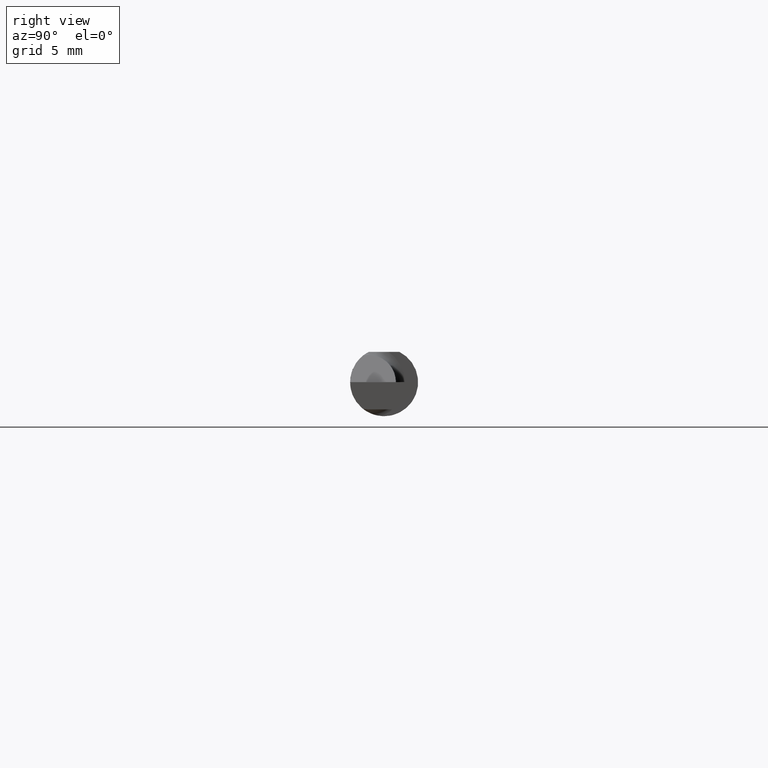
[diagram: clean part render]
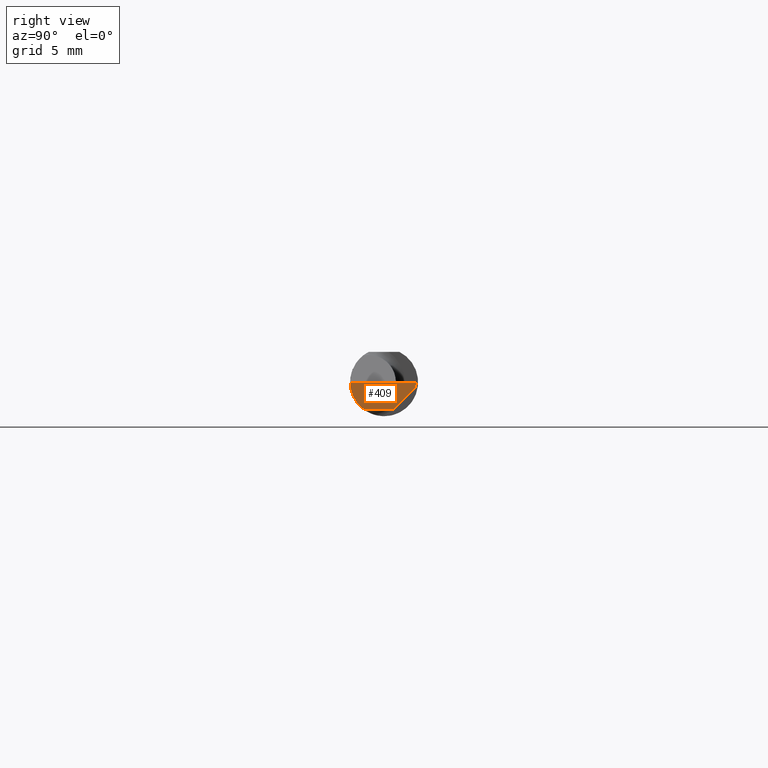
[diagram: same view with one face highlighted and labeled with its STEP entity id]
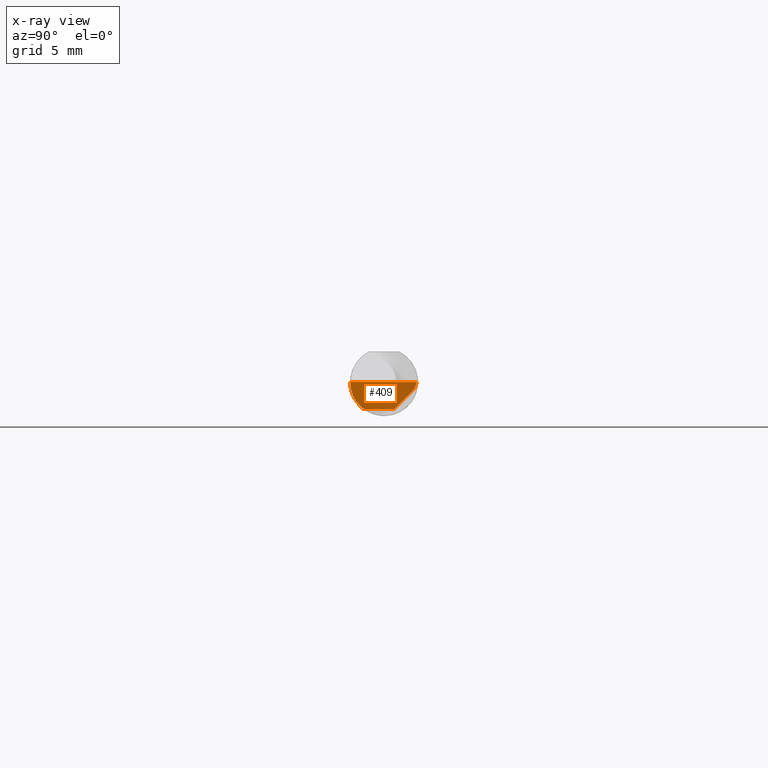
[diagram: x-ray of the same camera — body ghosted, the highlighted face saturated]
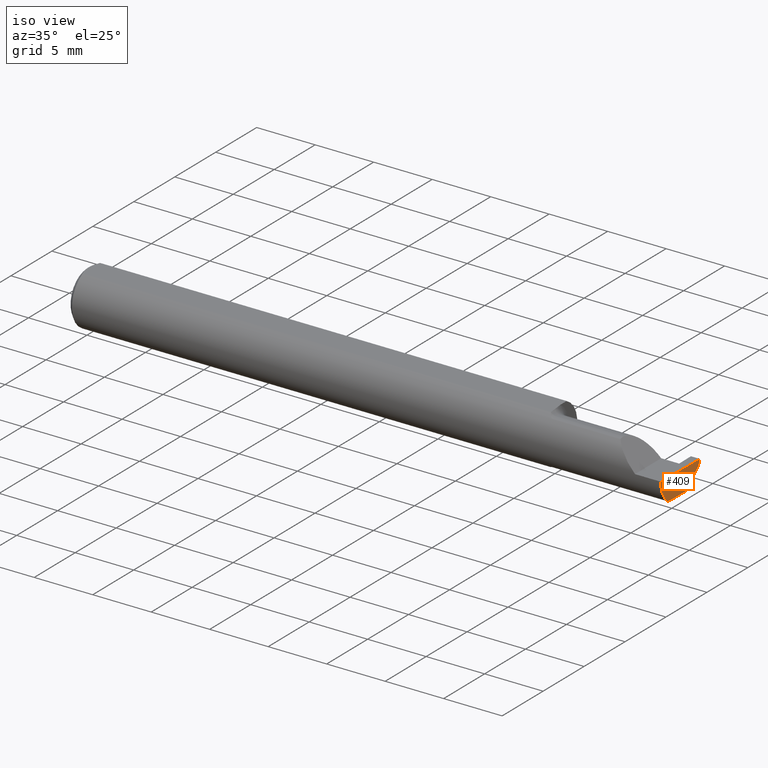
[diagram: same view with one face highlighted and labeled with its STEP entity id]
A machine part, right view. The second image highlights one B-rep face of the part: STEP entity #409.
The next image is the same camera in x-ray: the body ghosted, the highlighted face saturated — about 0% of this face is hidden behind the body in this view.
A second angle (iso view) of the same face is appended — the face is thin or edge-on in the first view.
In plain terms, the highlighted planar face has unit normal (-0.9995, 0.0174, 0.0262).
Its self-contained STEP definition (entity closure, byte-faithful):
#13 = DIRECTION ( 'NONE',  ( 0.02618093032612054533, 0.000000000000000000, 0.9996572206948034500 ) ) ;
#20 =( BOUNDED_CURVE ( )  B_SPLINE_CURVE ( 3, ( #225, #472, #645, #701 ),
 .UNSPECIFIED., .F., .T. ) 
 B_SPLINE_CURVE_WITH_KNOTS ( ( 4, 4 ),
 ( 0.3794527164476041992, 0.5877155292608622350 ),
 .UNSPECIFIED. ) 
 CURVE ( )  GEOMETRIC_REPRESENTATION_ITEM ( )  RATIONAL_B_SPLINE_CURVE ( ( 1.000000000000000000, 0.9963888149483995926, 0.9963888149483995926, 1.000000000000000000 ) ) 
 REPRESENTATION_ITEM ( '' )  );
#52 = LINE ( 'NONE', #228, #63 ) ;
#53 = DIRECTION ( 'NONE',  ( -0.01744642479411312799, -0.9998477995484629233, 3.463134274570152404E-16 ) ) ;
#63 = VECTOR ( 'NONE', #658, 39.37007874015748854 ) ;
#66 = CARTESIAN_POINT ( 'NONE',  ( 1.999381723781206599, 0.08348456554894213844, -0.01900000000000000300 ) ) ;
#71 = ORIENTED_EDGE ( 'NONE', *, *, #260, .F. ) ;
#83 = DIRECTION ( 'NONE',  ( -0.03084274406794414863, -0.7067703747110382073, -0.7067703747110356538 ) ) ;
#88 = CARTESIAN_POINT ( 'NONE',  ( 2.000000000000000444, 0.09040000000000000813, -4.722041942173579765E-17 ) ) ;
#97 = CARTESIAN_POINT ( 'NONE',  ( 1.996789369178486595, -0.09359999999634724399, 1.727064904157919157E-17 ) ) ;
#99 = VECTOR ( 'NONE', #172, 39.37007874015748854 ) ;
#100 = VERTEX_POINT ( 'NONE', #88 ) ;
#106 = CARTESIAN_POINT ( 'NONE',  ( 1.996678706298551820, -0.09994204647866641866, 4.067411700506801675E-19 ) ) ;
#116 = LINE ( 'NONE', #219, #99 ) ;
#121 = EDGE_CURVE ( 'NONE', #466, #265, #20, .T. ) ;
#128 = VERTEX_POINT ( 'NONE', #97 ) ;
#136 = EDGE_CURVE ( 'NONE', #128, #100, #713, .T. ) ;
#147 = CARTESIAN_POINT ( 'NONE',  ( 1.999287184445666998, 0.08131816941191072345, -0.02116639613703141104 ) ) ;
#156 = DIRECTION ( 'NONE',  ( 0.01744642479411313840, 0.9998477995484629233, -2.135106780035502721E-18 ) ) ;
#172 = DIRECTION ( 'NONE',  ( -0.03056411404777942264, -0.3418603543644915255, -0.9392536042231929283 ) ) ;
#182 = CARTESIAN_POINT ( 'NONE',  ( 1.995715029210241465, -0.04259999999999997816, -0.07499999999999998335 ) ) ;
#184 = VECTOR ( 'NONE', #83, 39.37007874015748854 ) ;
#219 = CARTESIAN_POINT ( 'NONE',  ( 1.999906583493247902, 0.08935513411407894346, -0.002870745427926570548 ) ) ;
#225 = CARTESIAN_POINT ( 'NONE',  ( 1.995486889784650497, -0.05810704225352112534, -0.07337936794867826185 ) ) ;
#228 = CARTESIAN_POINT ( 'NONE',  ( 1.994172072281005459, -0.09355431490906530867, -0.09996576130738767108 ) ) ;
#234 = VERTEX_POINT ( 'NONE', #358 ) ;
#250 = CARTESIAN_POINT ( 'NONE',  ( 1.997436282896842386, 0.05604437736224970185, -0.07500000000000002498 ) ) ;
#256 = VERTEX_POINT ( 'NONE', #66 ) ;
#260 = EDGE_CURVE ( 'NONE', #491, #265, #481, .T. ) ;
#265 = VERTEX_POINT ( 'NONE', #182 ) ;
#282 = VECTOR ( 'NONE', #53, 39.37007874015748854 ) ;
#294 = CARTESIAN_POINT ( 'NONE',  ( 1.995486889784650497, -0.05810704225352112534, -0.07337936794867826185 ) ) ;
#330 = EDGE_CURVE ( 'NONE', #466, #234, #570, .T. ) ;
#331 = ORIENTED_EDGE ( 'NONE', *, *, #578, .F. ) ;
#358 = CARTESIAN_POINT ( 'NONE',  ( 1.996788249052547481, -0.09359999022555406945, -4.277588313357508156E-05 ) ) ;
#363 = EDGE_LOOP ( 'NONE', ( #584, #71, #673, #729, #478, #331, #526 ) ) ;
#375 = EDGE_CURVE ( 'NONE', #256, #491, #752, .T. ) ;
#402 = CARTESIAN_POINT ( 'NONE',  ( 1.997382703856816377, 0.09044568507411565594, -0.09996573249755573431 ) ) ;
#409 = ADVANCED_FACE ( 'NONE', ( #464 ), #516, .F. ) ;
#410 = CARTESIAN_POINT ( 'NONE',  ( 1.996937940439960757, 0.02748456554894194992, -0.07499999999999998335 ) ) ;
#460 = DIRECTION ( 'NONE',  ( -0.9995051766793262571, 0.01744044634007060196, 0.02617694830739122208 ) ) ;
#464 = FACE_OUTER_BOUND ( 'NONE', #363, .T. ) ;
#466 = VERTEX_POINT ( 'NONE', #483 ) ;
#471 = AXIS2_PLACEMENT_3D ( 'NONE', #402, #460, #13 ) ;
#472 = CARTESIAN_POINT ( 'NONE',  ( 1.995547692684114249, -0.05300374992736063551, -0.07445783144524571739 ) ) ;
#477 = VECTOR ( 'NONE', #156, 39.37007874015748854 ) ;
#478 = ORIENTED_EDGE ( 'NONE', *, *, #136, .F. ) ;
#481 = LINE ( 'NONE', #250, #282 ) ;
#483 = CARTESIAN_POINT ( 'NONE',  ( 1.995486889784650497, -0.05810704225352112534, -0.07337936794867826185 ) ) ;
#484 = CARTESIAN_POINT ( 'NONE',  ( 1.995561922431088098, -0.08091355869144019330, -0.05531953381055033925 ) ) ;
#491 = VERTEX_POINT ( 'NONE', #410 ) ;
#516 = PLANE ( 'NONE',  #471 ) ;
#526 = ORIENTED_EDGE ( 'NONE', *, *, #330, .F. ) ;
#537 = CARTESIAN_POINT ( 'NONE',  ( 1.996026586675631709, -0.09358669535931163352, -0.02913391928411206838 ) ) ;
#558 = EDGE_CURVE ( 'NONE', #100, #256, #116, .T. ) ;
#570 =( BOUNDED_CURVE ( )  B_SPLINE_CURVE ( 3, ( #294, #484, #537, #725 ),
 .UNSPECIFIED., .F., .T. ) 
 B_SPLINE_CURVE_WITH_KNOTS ( ( 4, 4 ),
 ( 0.08204942185700578317, 0.9826237902196912621 ),
 .UNSPECIFIED. ) 
 CURVE ( )  GEOMETRIC_REPRESENTATION_ITEM ( )  RATIONAL_B_SPLINE_CURVE ( ( 1.000000000000000000, 0.9335481000009943076, 0.9335481000009943076, 1.000000000000000000 ) ) 
 REPRESENTATION_ITEM ( '' )  );
#578 = EDGE_CURVE ( 'NONE', #234, #128, #52, .T. ) ;
#584 = ORIENTED_EDGE ( 'NONE', *, *, #121, .T. ) ;
#645 = CARTESIAN_POINT ( 'NONE',  ( 1.995624014772495736, -0.04781600192481529760, -0.07499999999999999722 ) ) ;
#658 = DIRECTION ( 'NONE',  ( 0.02617296143184116158, -0.0004568507411563391195, 0.9996573249755575929 ) ) ;
#673 = ORIENTED_EDGE ( 'NONE', *, *, #375, .F. ) ;
#701 = CARTESIAN_POINT ( 'NONE',  ( 1.995715029210241465, -0.04259999999999997816, -0.07499999999999998335 ) ) ;
#713 = LINE ( 'NONE', #106, #477 ) ;
#725 = CARTESIAN_POINT ( 'NONE',  ( 1.996788249052547481, -0.09359999022555406945, -4.277588313357508156E-05 ) ) ;
#729 = ORIENTED_EDGE ( 'NONE', *, *, #558, .F. ) ;
#752 = LINE ( 'NONE', #147, #184 ) ;